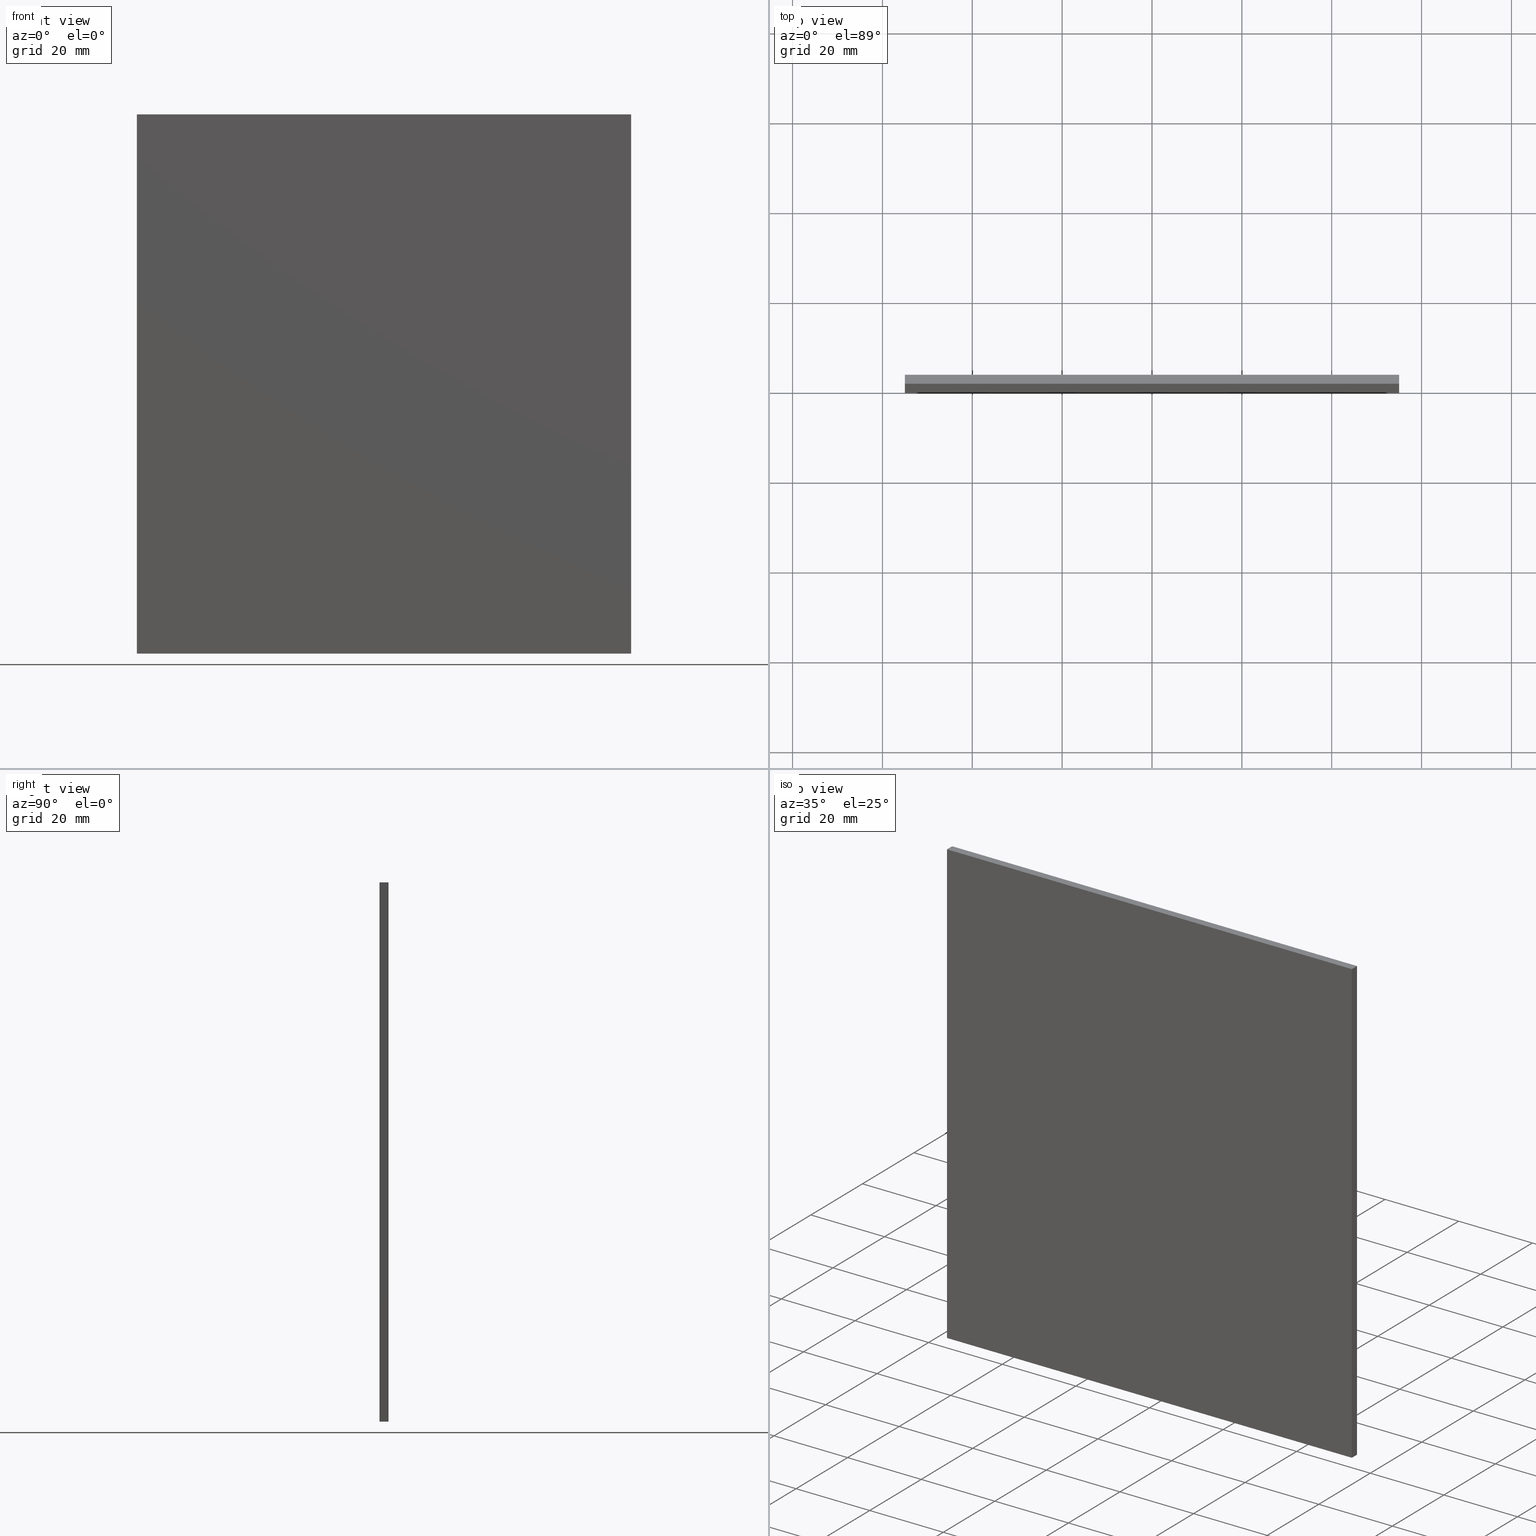
[diagram: canonical four-view strip — front | top / right | iso, engineering-drawing reading convention]
A machine part, canonical four-view strip (front | top / right | iso — engineering-drawing reading convention). The complete STEP part file that produces these views, byte-faithful:
ISO-10303-21;
HEADER;
FILE_DESCRIPTION (( 'STEP AP214' ),
    '1' );
FILE_NAME ('258517.STEP',
    '2019-08-07T02:30:24',
    ( 'user' ),
    ( '΢���й�' ),
    'SwSTEP 2.0',
    'SolidWorks 2016',
    '' );
FILE_SCHEMA (( 'AUTOMOTIVE_DESIGN' ));
ENDSEC;

DATA;
#1 = ADVANCED_FACE ( 'NONE', ( #45 ), #157, .F. ) ;
#2 = ADVANCED_BREP_SHAPE_REPRESENTATION ( '258517', ( #183, #144 ), #63 ) ;
#3 = DIRECTION ( 'NONE',  ( 0.0000000000000000000, -0.0000000000000000000, 1.000000000000000000 ) ) ;
#4 = STYLED_ITEM ( 'NONE', ( #34 ), #183 ) ;
#5 = DIRECTION ( 'NONE',  ( 1.734723475976807100E-016, 0.0000000000000000000, 1.000000000000000000 ) ) ;
#6 = FILL_AREA_STYLE_COLOUR ( '', #117 ) ;
#7 = VECTOR ( 'NONE', #10, 1000.000000000000000 ) ;
#8 = ORIENTED_EDGE ( 'NONE', *, *, #91, .F. ) ;
#9 = DIRECTION ( 'NONE',  ( -0.0000000000000000000, -1.000000000000000000, -0.0000000000000000000 ) ) ;
#10 = DIRECTION ( 'NONE',  ( -5.782411586589357400E-017, -0.0000000000000000000, -1.000000000000000000 ) ) ;
#11 = EDGE_CURVE ( 'NONE', #121, #193, #26, .T. ) ;
#12 =( NAMED_UNIT ( * ) SI_UNIT ( $, .STERADIAN. ) SOLID_ANGLE_UNIT ( ) );
#13 = ADVANCED_FACE ( 'NONE', ( #15 ), #23, .T. ) ;
#14 = SURFACE_STYLE_USAGE ( .BOTH. , #125 ) ;
#15 = FACE_OUTER_BOUND ( 'NONE', #185, .T. ) ;
#16 = ORIENTED_EDGE ( 'NONE', *, *, #187, .F. ) ;
#17 = VERTEX_POINT ( 'NONE', #127 ) ;
#18 = AXIS2_PLACEMENT_3D ( 'NONE', #168, #151, #57 ) ;
#19 = COLOUR_RGB ( '',1.000000000000000000, 1.000000000000000000, 1.000000000000000000 ) ;
#20 = LINE ( 'NONE', #149, #101 ) ;
#21 = DIRECTION ( 'NONE',  ( 0.0000000000000000000, 1.000000000000000000, 0.0000000000000000000 ) ) ;
#22 = VERTEX_POINT ( 'NONE', #84 ) ;
#23 = PLANE ( 'NONE',  #139 ) ;
#24 = ADVANCED_FACE ( 'NONE', ( #134 ), #153, .F. ) ;
#25 = CARTESIAN_POINT ( 'NONE',  ( 55.00000000000000700, 2.000000000000000000, -60.00000000000002100 ) ) ;
#26 = LINE ( 'NONE', #194, #189 ) ;
#27 = DIRECTION ( 'NONE',  ( -0.0000000000000000000, -1.000000000000000000, -0.0000000000000000000 ) ) ;
#28 = PRESENTATION_LAYER_ASSIGNMENT (  '', '', ( #4 ) ) ;
#29 = CARTESIAN_POINT ( 'NONE',  ( 55.00000000000000700, 0.0000000000000000000, -60.00000000000002100 ) ) ;
#30 = DIRECTION ( 'NONE',  ( 1.000000000000000000, 0.0000000000000000000, -0.0000000000000000000 ) ) ;
#31 =( NAMED_UNIT ( * ) PLANE_ANGLE_UNIT ( ) SI_UNIT ( $, .RADIAN. ) );
#32 = SURFACE_SIDE_STYLE ('',( #37 ) ) ;
#33 =( NAMED_UNIT ( * ) PLANE_ANGLE_UNIT ( ) SI_UNIT ( $, .RADIAN. ) );
#34 = PRESENTATION_STYLE_ASSIGNMENT (( #14 ) ) ;
#35 = DIRECTION ( 'NONE',  ( 0.0000000000000000000, -0.0000000000000000000, 1.000000000000000000 ) ) ;
#36 = SURFACE_STYLE_FILL_AREA ( #43 ) ;
#37 = SURFACE_STYLE_FILL_AREA ( #196 ) ;
#38 = MECHANICAL_DESIGN_GEOMETRIC_PRESENTATION_REPRESENTATION (  '', ( #4 ), #51 ) ;
#39 = LINE ( 'NONE', #67, #62 ) ;
#40 = CARTESIAN_POINT ( 'NONE',  ( -54.99999999999998600, 0.0000000000000000000, 59.99999999999997900 ) ) ;
#41 = SHAPE_DEFINITION_REPRESENTATION ( #148, #2 ) ;
#42 = ORIENTED_EDGE ( 'NONE', *, *, #65, .F. ) ;
#43 = FILL_AREA_STYLE ('',( #120 ) ) ;
#44 = CARTESIAN_POINT ( 'NONE',  ( -55.00000000000000700, 0.0000000000000000000, -60.00000000000002100 ) ) ;
#45 = FACE_OUTER_BOUND ( 'NONE', #74, .T. ) ;
#46 = DIRECTION ( 'NONE',  ( -1.000000000000000000, 0.0000000000000000000, -0.0000000000000000000 ) ) ;
#47 = VECTOR ( 'NONE', #100, 1000.000000000000000 ) ;
#48 = APPLICATION_PROTOCOL_DEFINITION ( 'draft international standard', 'automotive_design', 1998, #54 ) ;
#49 = CARTESIAN_POINT ( 'NONE',  ( -54.99999999999998600, 2.000000000000000000, 59.99999999999997900 ) ) ;
#50 = DIRECTION ( 'NONE',  ( -1.734723475976807100E-016, 0.0000000000000000000, -1.000000000000000000 ) ) ;
#51 =( GEOMETRIC_REPRESENTATION_CONTEXT ( 3 ) GLOBAL_UNCERTAINTY_ASSIGNED_CONTEXT ( ( #179 ) ) GLOBAL_UNIT_ASSIGNED_CONTEXT ( ( #130, #33, #64 ) ) REPRESENTATION_CONTEXT ( 'NONE', 'WORKASPACE' ) );
#52 = EDGE_LOOP ( 'NONE', ( #177, #103, #104, #109 ) ) ;
#53 = LINE ( 'NONE', #59, #202 ) ;
#54 = APPLICATION_CONTEXT ( 'automotive_design' ) ;
#55 = ORIENTED_EDGE ( 'NONE', *, *, #162, .T. ) ;
#56 = FACE_OUTER_BOUND ( 'NONE', #105, .T. ) ;
#57 = DIRECTION ( 'NONE',  ( 5.782411586589358600E-017, 0.0000000000000000000, 1.000000000000000000 ) ) ;
#58 = CARTESIAN_POINT ( 'NONE',  ( -54.99999999999998600, 2.000000000000000000, 59.99999999999997900 ) ) ;
#59 = CARTESIAN_POINT ( 'NONE',  ( -55.00000000000000700, 2.000000000000000000, -60.00000000000002100 ) ) ;
#60 = ORIENTED_EDGE ( 'NONE', *, *, #71, .T. ) ;
#61 = DIRECTION ( 'NONE',  ( 0.0000000000000000000, 0.0000000000000000000, 1.000000000000000000 ) ) ;
#62 = VECTOR ( 'NONE', #135, 1000.000000000000000 ) ;
#63 =( GEOMETRIC_REPRESENTATION_CONTEXT ( 3 ) GLOBAL_UNCERTAINTY_ASSIGNED_CONTEXT ( ( #152 ) ) GLOBAL_UNIT_ASSIGNED_CONTEXT ( ( #141, #31, #66 ) ) REPRESENTATION_CONTEXT ( 'NONE', 'WORKASPACE' ) );
#64 =( NAMED_UNIT ( * ) SI_UNIT ( $, .STERADIAN. ) SOLID_ANGLE_UNIT ( ) );
#65 = EDGE_CURVE ( 'NONE', #150, #121, #20, .T. ) ;
#66 =( NAMED_UNIT ( * ) SI_UNIT ( $, .STERADIAN. ) SOLID_ANGLE_UNIT ( ) );
#67 = CARTESIAN_POINT ( 'NONE',  ( 55.00000000000001400, 2.000000000000000000, 59.99999999999997900 ) ) ;
#68 = VERTEX_POINT ( 'NONE', #181 ) ;
#69 = LINE ( 'NONE', #49, #131 ) ;
#70 = ADVANCED_FACE ( 'NONE', ( #119 ), #80, .F. ) ;
#71 = EDGE_CURVE ( 'NONE', #17, #150, #176, .T. ) ;
#72 = VECTOR ( 'NONE', #89, 1000.000000000000000 ) ;
#73 = DIRECTION ( 'NONE',  ( -0.0000000000000000000, -1.000000000000000000, -0.0000000000000000000 ) ) ;
#74 = EDGE_LOOP ( 'NONE', ( #83, #16, #146, #201 ) ) ;
#75 = VECTOR ( 'NONE', #170, 1000.000000000000000 ) ;
#76 = PRODUCT_CONTEXT ( 'NONE', #123, 'mechanical' ) ;
#77 = DIRECTION ( 'NONE',  ( 1.000000000000000000, 0.0000000000000000000, 0.0000000000000000000 ) ) ;
#78 = LINE ( 'NONE', #126, #90 ) ;
#79 = VERTEX_POINT ( 'NONE', #124 ) ;
#80 = PLANE ( 'NONE',  #175 ) ;
#81 = DIRECTION ( 'NONE',  ( 0.0000000000000000000, 0.0000000000000000000, -1.000000000000000000 ) ) ;
#82 = EDGE_CURVE ( 'NONE', #150, #173, #94, .T. ) ;
#83 = ORIENTED_EDGE ( 'NONE', *, *, #132, .F. ) ;
#84 = CARTESIAN_POINT ( 'NONE',  ( -54.99999999999998600, 0.0000000000000000000, 59.99999999999997900 ) ) ;
#85 = CARTESIAN_POINT ( 'NONE',  ( -55.00000000000000700, 2.000000000000000000, -60.00000000000002100 ) ) ;
#86 = STYLED_ITEM ( 'NONE', ( #160 ), #2 ) ;
#87 = LINE ( 'NONE', #44, #72 ) ;
#88 = PLANE ( 'NONE',  #18 ) ;
#89 = DIRECTION ( 'NONE',  ( 1.734723475976807100E-016, 0.0000000000000000000, 1.000000000000000000 ) ) ;
#90 = VECTOR ( 'NONE', #5, 1000.000000000000000 ) ;
#91 = EDGE_CURVE ( 'NONE', #173, #79, #78, .T. ) ;
#92 = CARTESIAN_POINT ( 'NONE',  ( -55.00000000000000700, 2.000000000000000000, -60.00000000000002100 ) ) ;
#93 = ADVANCED_FACE ( 'NONE', ( #184 ), #97, .F. ) ;
#94 = LINE ( 'NONE', #98, #128 ) ;
#95 = DIRECTION ( 'NONE',  ( 0.0000000000000000000, 1.000000000000000000, 0.0000000000000000000 ) ) ;
#96 = PRESENTATION_LAYER_ASSIGNMENT (  '', '', ( #86 ) ) ;
#97 = PLANE ( 'NONE',  #197 ) ;
#98 = CARTESIAN_POINT ( 'NONE',  ( -55.00000000000000700, 2.000000000000000000, -60.00000000000002100 ) ) ;
#99 = SURFACE_STYLE_USAGE ( .BOTH. , #32 ) ;
#100 = DIRECTION ( 'NONE',  ( 1.000000000000000000, 0.0000000000000000000, 0.0000000000000000000 ) ) ;
#101 = VECTOR ( 'NONE', #9, 1000.000000000000000 ) ;
#102 = ORIENTED_EDGE ( 'NONE', *, *, #71, .F. ) ;
#103 = ORIENTED_EDGE ( 'NONE', *, *, #158, .F. ) ;
#104 = ORIENTED_EDGE ( 'NONE', *, *, #82, .F. ) ;
#105 = EDGE_LOOP ( 'NONE', ( #171, #42, #102, #55 ) ) ;
#106 = MECHANICAL_DESIGN_GEOMETRIC_PRESENTATION_REPRESENTATION (  '', ( #86 ), #118 ) ;
#107 = ORIENTED_EDGE ( 'NONE', *, *, #162, .F. ) ;
#108 = ORIENTED_EDGE ( 'NONE', *, *, #187, .T. ) ;
#109 = ORIENTED_EDGE ( 'NONE', *, *, #65, .T. ) ;
#110 = DIRECTION ( 'NONE',  ( -1.000000000000000000, -0.0000000000000000000, -0.0000000000000000000 ) ) ;
#111 = CARTESIAN_POINT ( 'NONE',  ( 0.0000000000000000000, 0.0000000000000000000, 0.0000000000000000000 ) ) ;
#112 = CARTESIAN_POINT ( 'NONE',  ( -55.00000000000000700, 2.000000000000000000, -60.00000000000002100 ) ) ;
#113 = CARTESIAN_POINT ( 'NONE',  ( 55.00000000000000700, 0.0000000000000000000, -60.00000000000002100 ) ) ;
#114 =( NAMED_UNIT ( * ) PLANE_ANGLE_UNIT ( ) SI_UNIT ( $, .RADIAN. ) );
#115 = ORIENTED_EDGE ( 'NONE', *, *, #167, .T. ) ;
#116 = UNCERTAINTY_MEASURE_WITH_UNIT (LENGTH_MEASURE( 1.000000000000000100E-005 ), #198, 'distance_accuracy_value', 'NONE');
#117 = COLOUR_RGB ( '',1.000000000000000000, 1.000000000000000000, 1.000000000000000000 ) ;
#118 =( GEOMETRIC_REPRESENTATION_CONTEXT ( 3 ) GLOBAL_UNCERTAINTY_ASSIGNED_CONTEXT ( ( #116 ) ) GLOBAL_UNIT_ASSIGNED_CONTEXT ( ( #198, #114, #12 ) ) REPRESENTATION_CONTEXT ( 'NONE', 'WORKASPACE' ) );
#119 = FACE_OUTER_BOUND ( 'NONE', #190, .T. ) ;
#120 = FILL_AREA_STYLE_COLOUR ( '', #19 ) ;
#121 = VERTEX_POINT ( 'NONE', #113 ) ;
#122 = AXIS2_PLACEMENT_3D ( 'NONE', #111, #95, #35 ) ;
#123 = APPLICATION_CONTEXT ( 'automotive_design' ) ;
#124 = CARTESIAN_POINT ( 'NONE',  ( -54.99999999999998600, 2.000000000000000000, 59.99999999999997900 ) ) ;
#125 = SURFACE_SIDE_STYLE ('',( #36 ) ) ;
#126 = CARTESIAN_POINT ( 'NONE',  ( -55.00000000000000700, 2.000000000000000000, -60.00000000000002100 ) ) ;
#127 = CARTESIAN_POINT ( 'NONE',  ( 55.00000000000001400, 2.000000000000000000, 59.99999999999997900 ) ) ;
#128 = VECTOR ( 'NONE', #136, 1000.000000000000000 ) ;
#129 = EDGE_CURVE ( 'NONE', #79, #17, #165, .T. ) ;
#130 =( LENGTH_UNIT ( ) NAMED_UNIT ( * ) SI_UNIT ( .MILLI., .METRE. ) );
#131 = VECTOR ( 'NONE', #27, 1000.000000000000000 ) ;
#132 = EDGE_CURVE ( 'NONE', #68, #121, #145, .T. ) ;
#133 = EDGE_CURVE ( 'NONE', #79, #22, #69, .T. ) ;
#134 = FACE_OUTER_BOUND ( 'NONE', #52, .T. ) ;
#135 = DIRECTION ( 'NONE',  ( -0.0000000000000000000, -1.000000000000000000, -0.0000000000000000000 ) ) ;
#136 = DIRECTION ( 'NONE',  ( -1.000000000000000000, -0.0000000000000000000, -0.0000000000000000000 ) ) ;
#137 = ORIENTED_EDGE ( 'NONE', *, *, #82, .T. ) ;
#138 = APPLICATION_PROTOCOL_DEFINITION ( 'draft international standard', 'automotive_design', 1998, #123 ) ;
#139 = AXIS2_PLACEMENT_3D ( 'NONE', #178, #21, #3 ) ;
#140 = CARTESIAN_POINT ( 'NONE',  ( -54.99999999999998600, 2.000000000000000000, 59.99999999999997900 ) ) ;
#141 =( LENGTH_UNIT ( ) NAMED_UNIT ( * ) SI_UNIT ( .MILLI., .METRE. ) );
#142 = ORIENTED_EDGE ( 'NONE', *, *, #158, .T. ) ;
#143 = DIRECTION ( 'NONE',  ( 1.000000000000000000, 0.0000000000000000000, -1.734723475976807100E-016 ) ) ;
#144 = AXIS2_PLACEMENT_3D ( 'NONE', #199, #61, #191 ) ;
#145 = LINE ( 'NONE', #29, #75 ) ;
#146 = ORIENTED_EDGE ( 'NONE', *, *, #167, .F. ) ;
#147 = CLOSED_SHELL ( 'NONE', ( #180, #24, #70, #93, #13, #1 ) ) ;
#148 = PRODUCT_DEFINITION_SHAPE ( 'NONE', 'NONE',  #155 ) ;
#149 = CARTESIAN_POINT ( 'NONE',  ( 55.00000000000000700, 2.000000000000000000, -60.00000000000002100 ) ) ;
#150 = VERTEX_POINT ( 'NONE', #154 ) ;
#151 = DIRECTION ( 'NONE',  ( -1.000000000000000000, 0.0000000000000000000, 5.782411586589358600E-017 ) ) ;
#152 = UNCERTAINTY_MEASURE_WITH_UNIT (LENGTH_MEASURE( 1.000000000000000100E-005 ), #141, 'distance_accuracy_value', 'NONE');
#153 = PLANE ( 'NONE',  #163 ) ;
#154 = CARTESIAN_POINT ( 'NONE',  ( 55.00000000000000700, 2.000000000000000000, -60.00000000000002100 ) ) ;
#155 = PRODUCT_DEFINITION ( 'δ֪', '', #166, #186 ) ;
#156 = ORIENTED_EDGE ( 'NONE', *, *, #133, .T. ) ;
#157 = PLANE ( 'NONE',  #122 ) ;
#158 = EDGE_CURVE ( 'NONE', #173, #193, #53, .T. ) ;
#159 = ORIENTED_EDGE ( 'NONE', *, *, #129, .T. ) ;
#160 = PRESENTATION_STYLE_ASSIGNMENT (( #99 ) ) ;
#161 = EDGE_LOOP ( 'NONE', ( #108, #107, #200, #156 ) ) ;
#162 = EDGE_CURVE ( 'NONE', #17, #68, #39, .T. ) ;
#163 = AXIS2_PLACEMENT_3D ( 'NONE', #112, #169, #30 ) ;
#164 = ORIENTED_EDGE ( 'NONE', *, *, #91, .T. ) ;
#165 = LINE ( 'NONE', #58, #47 ) ;
#166 = PRODUCT_DEFINITION_FORMATION_WITH_SPECIFIED_SOURCE ( '�κ�', '', #188, .NOT_KNOWN. ) ;
#167 = EDGE_CURVE ( 'NONE', #193, #22, #87, .T. ) ;
#168 = CARTESIAN_POINT ( 'NONE',  ( 55.00000000000000700, 2.000000000000000000, -60.00000000000002100 ) ) ;
#169 = DIRECTION ( 'NONE',  ( 0.0000000000000000000, 0.0000000000000000000, 1.000000000000000000 ) ) ;
#170 = DIRECTION ( 'NONE',  ( -5.782411586589357400E-017, -0.0000000000000000000, -1.000000000000000000 ) ) ;
#171 = ORIENTED_EDGE ( 'NONE', *, *, #132, .T. ) ;
#172 = PRODUCT_RELATED_PRODUCT_CATEGORY ( 'part', '', ( #188 ) ) ;
#173 = VERTEX_POINT ( 'NONE', #92 ) ;
#174 = VECTOR ( 'NONE', #77, 1000.000000000000000 ) ;
#175 = AXIS2_PLACEMENT_3D ( 'NONE', #85, #143, #50 ) ;
#176 = LINE ( 'NONE', #25, #7 ) ;
#177 = ORIENTED_EDGE ( 'NONE', *, *, #11, .T. ) ;
#178 = CARTESIAN_POINT ( 'NONE',  ( 0.0000000000000000000, 2.000000000000000000, 0.0000000000000000000 ) ) ;
#179 = UNCERTAINTY_MEASURE_WITH_UNIT (LENGTH_MEASURE( 1.000000000000000100E-005 ), #130, 'distance_accuracy_value', 'NONE');
#180 = ADVANCED_FACE ( 'NONE', ( #56 ), #88, .F. ) ;
#181 = CARTESIAN_POINT ( 'NONE',  ( 55.00000000000001400, 0.0000000000000000000, 59.99999999999997900 ) ) ;
#182 = CARTESIAN_POINT ( 'NONE',  ( -55.00000000000000700, 0.0000000000000000000, -60.00000000000002100 ) ) ;
#183 = MANIFOLD_SOLID_BREP ( '͹̨-����1', #147 ) ;
#184 = FACE_OUTER_BOUND ( 'NONE', #161, .T. ) ;
#185 = EDGE_LOOP ( 'NONE', ( #60, #137, #164, #159 ) ) ;
#186 = PRODUCT_DEFINITION_CONTEXT ( 'detailed design', #54, 'design' ) ;
#187 = EDGE_CURVE ( 'NONE', #22, #68, #192, .T. ) ;
#188 = PRODUCT ( '258517', '258517', '', ( #76 ) ) ;
#189 = VECTOR ( 'NONE', #110, 1000.000000000000000 ) ;
#190 = EDGE_LOOP ( 'NONE', ( #115, #195, #8, #142 ) ) ;
#191 = DIRECTION ( 'NONE',  ( 1.000000000000000000, 0.0000000000000000000, 0.0000000000000000000 ) ) ;
#192 = LINE ( 'NONE', #40, #174 ) ;
#193 = VERTEX_POINT ( 'NONE', #182 ) ;
#194 = CARTESIAN_POINT ( 'NONE',  ( -55.00000000000000700, 0.0000000000000000000, -60.00000000000002100 ) ) ;
#195 = ORIENTED_EDGE ( 'NONE', *, *, #133, .F. ) ;
#196 = FILL_AREA_STYLE ('',( #6 ) ) ;
#197 = AXIS2_PLACEMENT_3D ( 'NONE', #140, #81, #46 ) ;
#198 =( LENGTH_UNIT ( ) NAMED_UNIT ( * ) SI_UNIT ( .MILLI., .METRE. ) );
#199 = CARTESIAN_POINT ( 'NONE',  ( 0.0000000000000000000, 0.0000000000000000000, 0.0000000000000000000 ) ) ;
#200 = ORIENTED_EDGE ( 'NONE', *, *, #129, .F. ) ;
#201 = ORIENTED_EDGE ( 'NONE', *, *, #11, .F. ) ;
#202 = VECTOR ( 'NONE', #73, 1000.000000000000000 ) ;
ENDSEC;
END-ISO-10303-21;
